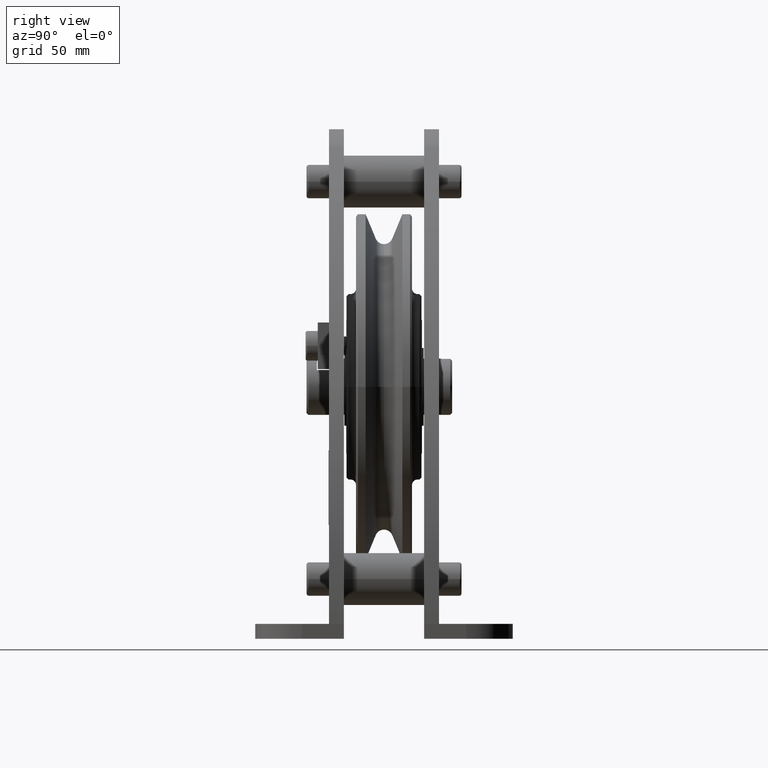
[diagram: clean part render]
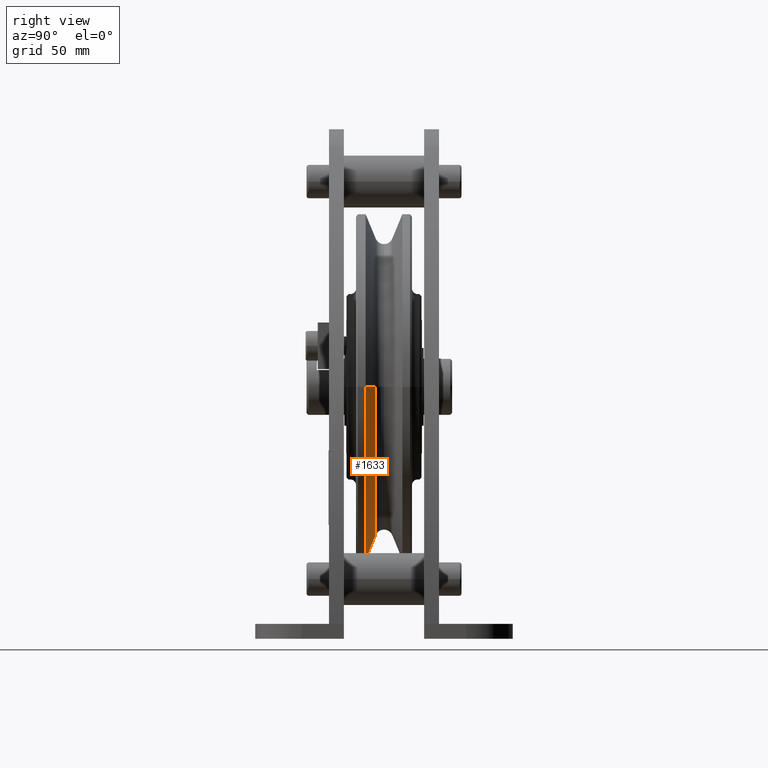
[diagram: same view with one face highlighted and labeled with its STEP entity id]
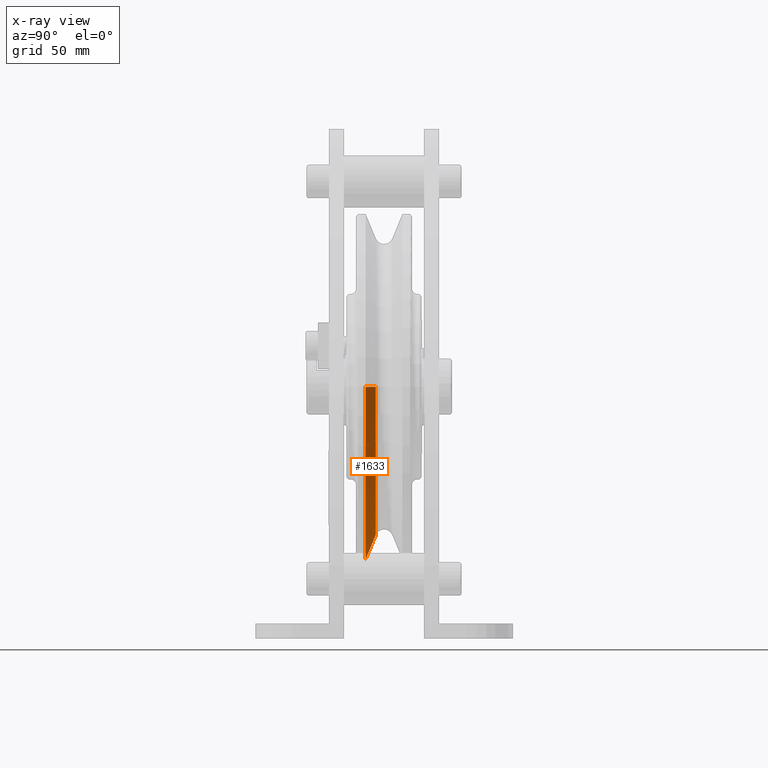
[diagram: x-ray of the same camera — body ghosted, the highlighted face saturated]
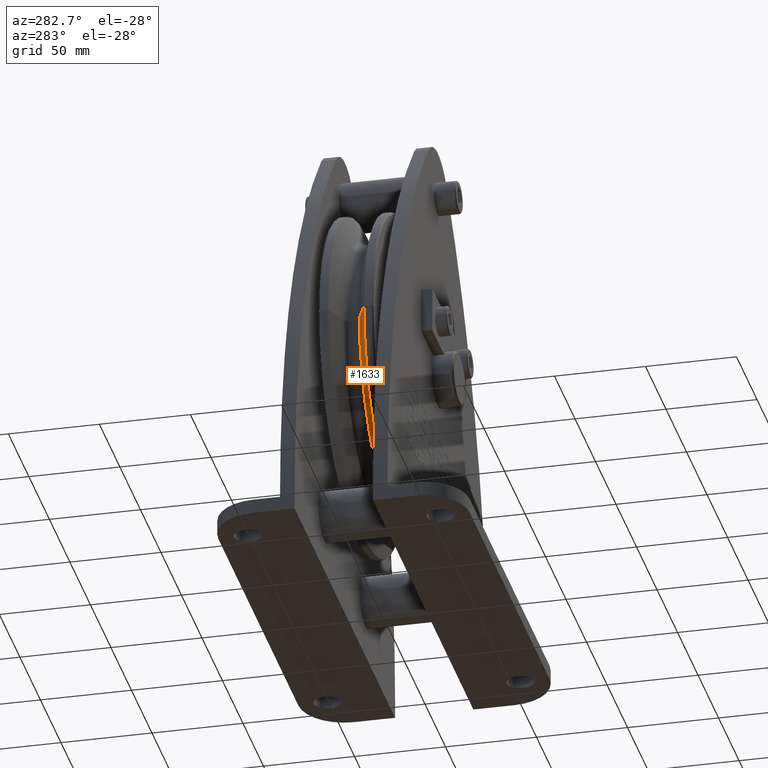
[diagram: same view with one face highlighted and labeled with its STEP entity id]
A machine part, right view. The second image highlights one B-rep face of the part: STEP entity #1633.
The next image is the same camera in x-ray: the body ghosted, the highlighted face saturated — about 0% of this face is hidden behind the body in this view.
A second angle (auxiliary view) of the same face is appended — the face is thin or edge-on in the first view.
In plain terms, the highlighted conical surface has half-angle 67.5 deg.
Its self-contained STEP definition (entity closure, byte-faithful):
#1633=ADVANCED_FACE('',(#3504),#3505,.T.);
#3504=FACE_OUTER_BOUND('',#5590,.T.);
#3505=CONICAL_SURFACE('',#5591,85.98156,1.17809724555648);
#5590=EDGE_LOOP('',(#10720,#10721,#10722,#10723));
#5591=AXIS2_PLACEMENT_3D('',#10724,#10725,#10726);
#10720=ORIENTED_EDGE('',*,*,#12778,.T.);
#10721=ORIENTED_EDGE('',*,*,#14302,.F.);
#10722=ORIENTED_EDGE('',*,*,#12779,.T.);
#10723=ORIENTED_EDGE('',*,*,#12432,.T.);
#10724=CARTESIAN_POINT('',(0.0,-7.13464825,0.0));
#10725=DIRECTION('',(-0.0,-1.0,0.0));
#10726=DIRECTION('',(1.0,0.0,0.0));
#12432=EDGE_CURVE('',#14914,#14916,#14921,.T.);
#12778=EDGE_CURVE('',#14916,#15414,#15498,.T.);
#12779=EDGE_CURVE('',#15417,#14914,#15499,.T.);
#14302=EDGE_CURVE('',#15417,#15414,#17755,.T.);
#14914=VERTEX_POINT('',#19502);
#14916=VERTEX_POINT('',#19504);
#14921=CIRCLE('',#19509,79.46312);
#15414=VERTEX_POINT('',#21802);
#15417=VERTEX_POINT('',#21806);
#15498=LINE('',#21904,#21905);
#15499=LINE('',#21906,#21907);
#17755=CIRCLE('',#25140,92.5);
#19502=CARTESIAN_POINT('',(-79.46312,-4.434622,9.7314255558262E-015));
#19504=CARTESIAN_POINT('',(79.46312,-4.434622,0.0));
#19509=AXIS2_PLACEMENT_3D('',#26960,#26961,#26962);
#21802=CARTESIAN_POINT('',(92.5,-9.8346745,0.0));
#21806=CARTESIAN_POINT('',(-92.5,-9.8346745,1.1327982892113E-014));
#21904=CARTESIAN_POINT('',(85.98156,-7.13464825,-1.05297042239696E-014));
#21905=VECTOR('',#27464,1.0);
#21906=CARTESIAN_POINT('',(-85.98156,-7.13464825,1.05297042239696E-014));
#21907=VECTOR('',#27465,1.0);
#25140=AXIS2_PLACEMENT_3D('',#29244,#29245,#29246);
#26960=CARTESIAN_POINT('',(0.0,-4.434622,0.0));
#26961=DIRECTION('',(0.0,-1.0,0.0));
#26962=DIRECTION('',(1.0,0.0,0.0));
#27464=DIRECTION('',(0.923879532687438,-0.382683431939823,-1.13142611250342E-016));
#27465=DIRECTION('',(0.923879532687438,0.382683431939823,-1.13142611250342E-016));
#29244=CARTESIAN_POINT('',(0.0,-9.8346745,0.0));
#29245=DIRECTION('',(0.0,-1.0,0.0));
#29246=DIRECTION('',(1.0,0.0,0.0));